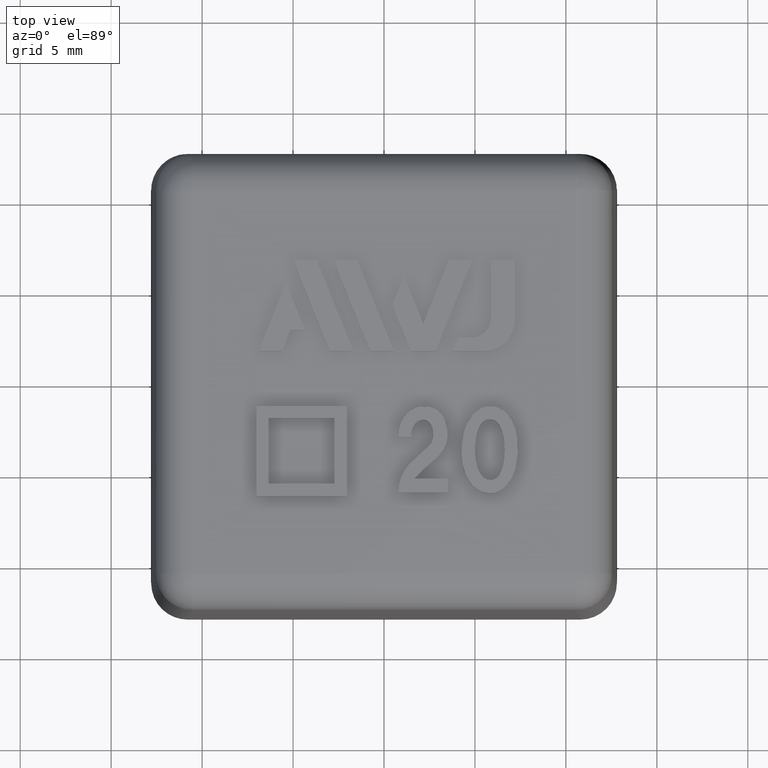
[diagram: clean part render]
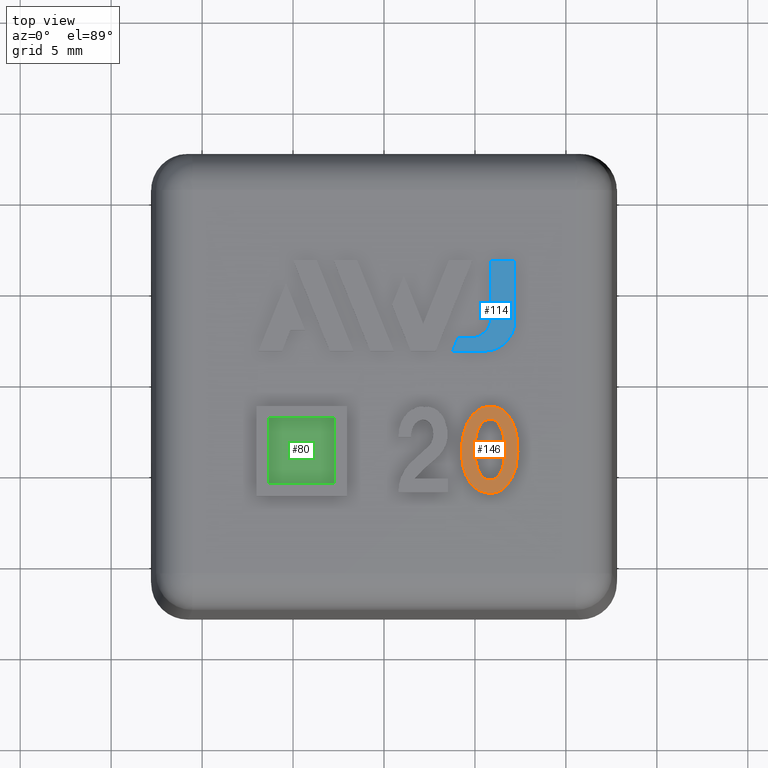
[diagram: same view with three faces highlighted in distinct colors, each labeled with its STEP entity id]
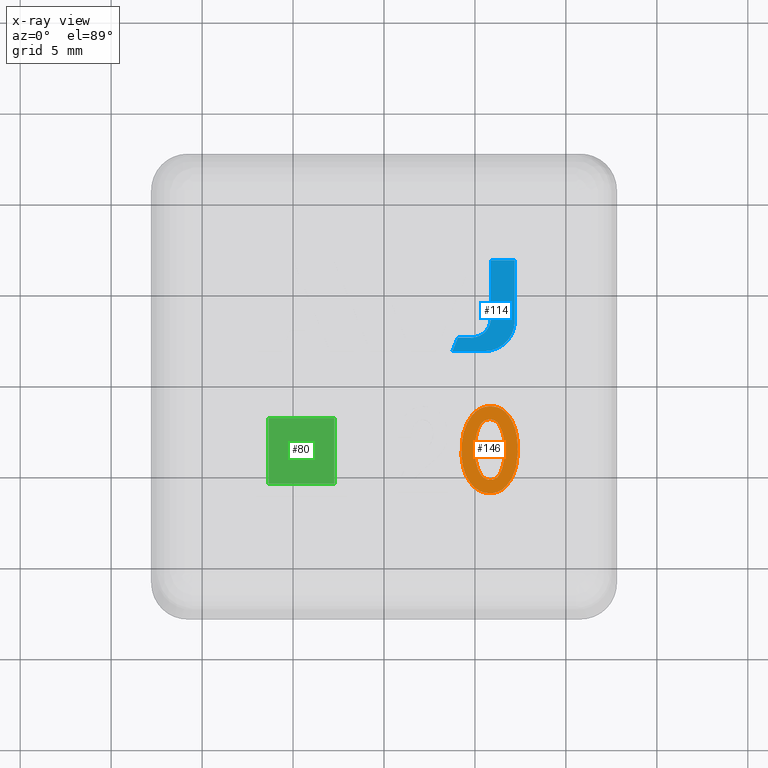
[diagram: x-ray of the same camera — body ghosted, the three highlighted faces saturated]
A machine part, top view with three faces highlighted in distinct colors.
The next image is the same camera in x-ray (body ghosted, the three faces saturated) — at least one of them is partly hidden behind the body in this view.
Their STEP definitions:

[orange] entity #146 — the highlighted planar face has unit normal (0, 0, 1).
#146 = ADVANCED_FACE( '', ( #306, #307 ), #308, .T. );
#306 = FACE_OUTER_BOUND( '', #476, .T. );
#307 = FACE_BOUND( '', #477, .T. );
#308 = PLANE( '', #478 );
#476 = EDGE_LOOP( '', ( #1075 ) );
#477 = EDGE_LOOP( '', ( #1076 ) );
#478 = AXIS2_PLACEMENT_3D( '', #1077, #1078, #1079 );
#1075 = ORIENTED_EDGE( '', *, *, #1302, .F. );
#1076 = ORIENTED_EDGE( '', *, *, #1301, .F. );
#1077 = CARTESIAN_POINT( '', ( 6.90009744318178, -1.96382727272729, 17.5000000000000 ) );
#1078 = DIRECTION( '', ( 0.000000000000000, 0.000000000000000, 1.00000000000000 ) );
#1079 = DIRECTION( '', ( 0.000000000000000, -1.00000000000000, 0.000000000000000 ) );
#1301 = EDGE_CURVE( '', #1591, #1591, #1592, .T. );
#1302 = EDGE_CURVE( '', #1593, #1593, #1594, .T. );
#1591 = VERTEX_POINT( '', #2131 );
#1592 = B_SPLINE_CURVE_WITH_KNOTS( '', 2, ( #2132, #2133, #2134, #2135, #2136, #2137, #2138, #2139, #2140, #2141, #2142, #2143, #2144, #2145, #2146, #2147, #2148 ), .UNSPECIFIED., .T., .F., ( 3, 2, 2, 2, 2, 2, 2, 2, 3 ), ( 0.000000000000000, 1.00000000000000, 2.00000000000000, 3.00000000000000, 4.00000000000000, 5.00000000000000, 6.00000000000000, 7.00000000000000, 8.00000000000000 ), .UNSPECIFIED. );
#1593 = VERTEX_POINT( '', #2149 );
#1594 = B_SPLINE_CURVE_WITH_KNOTS( '', 2, ( #2150, #2151, #2152, #2153, #2154, #2155, #2156, #2157, #2158, #2159, #2160, #2161, #2162, #2163, #2164, #2165, #2166 ), .UNSPECIFIED., .T., .F., ( 3, 2, 2, 2, 2, 2, 2, 2, 3 ), ( 0.000000000000000, 1.00000000000000, 2.00000000000000, 3.00000000000000, 4.00000000000000, 5.00000000000000, 6.00000000000000, 7.00000000000000, 8.00000000000000 ), .UNSPECIFIED. );
#2131 = CARTESIAN_POINT( '', ( 5.15746107954541, -4.81537272727274, 17.5000000000000 ) );
#2132 = CARTESIAN_POINT( '', ( 5.15746107954541, -4.81537272727274, 17.5000000000000 ) );
#2133 = CARTESIAN_POINT( '', ( 5.36200653409087, -5.36082727272729, 17.5000000000000 ) );
#2134 = CARTESIAN_POINT( '', ( 5.74869458830469, -5.42711665344966, 17.5000000000000 ) );
#2135 = CARTESIAN_POINT( '', ( 6.15746107954541, -5.49719090909093, 17.5000000000000 ) );
#2136 = CARTESIAN_POINT( '', ( 6.39956071195886, -5.03847581609701, 17.5000000000000 ) );
#2137 = CARTESIAN_POINT( '', ( 6.58927926136359, -4.67900909090911, 17.5000000000000 ) );
#2138 = CARTESIAN_POINT( '', ( 6.63102397637564, -4.04240218697547, 17.5000000000000 ) );
#2139 = CARTESIAN_POINT( '', ( 6.68018835227269, -3.29264545454547, 17.5000000000000 ) );
#2140 = CARTESIAN_POINT( '', ( 6.49511061179874, -2.74829915903388, 17.5000000000000 ) );
#2141 = CARTESIAN_POINT( '', ( 6.29382471590905, -2.15628181818184, 17.5000000000000 ) );
#2142 = CARTESIAN_POINT( '', ( 5.93109744318178, -2.10446363636365, 17.5000000000000 ) );
#2143 = CARTESIAN_POINT( '', ( 5.49837017045450, -2.04264545454547, 17.5000000000000 ) );
#2144 = CARTESIAN_POINT( '', ( 5.27599254807688, -2.43180629370631, 17.5000000000000 ) );
#2145 = CARTESIAN_POINT( '', ( 5.04382471590905, -2.83810000000002, 17.5000000000000 ) );
#2146 = CARTESIAN_POINT( '', ( 5.00196318973134, -3.49741903729898, 17.5000000000000 ) );
#2147 = CARTESIAN_POINT( '', ( 4.95291562499996, -4.26991818181820, 17.5000000000000 ) );
#2148 = CARTESIAN_POINT( '', ( 5.15746107954541, -4.81537272727274, 17.5000000000000 ) );
#2149 = CARTESIAN_POINT( '', ( 4.74668299300313, -5.58939019452165, 17.5000000000000 ) );
#2150 = CARTESIAN_POINT( '', ( 4.74668299300313, -5.58939019452165, 17.5000000000000 ) );
#2151 = CARTESIAN_POINT( '', ( 4.29382471590905, -4.99719090909093, 17.5000000000000 ) );
#2152 = CARTESIAN_POINT( '', ( 4.26223194516419, -3.99675316883694, 17.5000000000000 ) );
#2153 = CARTESIAN_POINT( '', ( 4.22564289772723, -2.83810000000002, 17.5000000000000 ) );
#2154 = CARTESIAN_POINT( '', ( 4.69678692224204, -2.08426956077632, 17.5000000000000 ) );
#2155 = CARTESIAN_POINT( '', ( 5.13473380681814, -1.38355454545456, 17.5000000000000 ) );
#2156 = CARTESIAN_POINT( '', ( 5.83927926136360, -1.38355454545456, 17.5000000000000 ) );
#2157 = CARTESIAN_POINT( '', ( 6.49837017045450, -1.38355454545456, 17.5000000000000 ) );
#2158 = CARTESIAN_POINT( '', ( 6.90009744318178, -1.96382727272729, 17.5000000000000 ) );
#2159 = CARTESIAN_POINT( '', ( 7.31655198863632, -2.56537272727274, 17.5000000000000 ) );
#2160 = CARTESIAN_POINT( '', ( 7.35862295825955, -3.56455825582449, 17.5000000000000 ) );
#2161 = CARTESIAN_POINT( '', ( 7.40746107954541, -4.72446363636365, 17.5000000000000 ) );
#2162 = CARTESIAN_POINT( '', ( 6.95604528222798, -5.45367377049182, 17.5000000000000 ) );
#2163 = CARTESIAN_POINT( '', ( 6.52109744318178, -6.15628181818184, 17.5000000000000 ) );
#2164 = CARTESIAN_POINT( '', ( 5.83927926136360, -6.15628181818184, 17.5000000000000 ) );
#2165 = CARTESIAN_POINT( '', ( 5.18018835227269, -6.15628181818184, 17.5000000000000 ) );
#2166 = CARTESIAN_POINT( '', ( 4.74668299300313, -5.58939019452165, 17.5000000000000 ) );

[blue] entity #114 — the highlighted planar face has unit normal (0, 0, 1).
#114 = ADVANCED_FACE( '', ( #240 ), #241, .T. );
#240 = FACE_OUTER_BOUND( '', #409, .T. );
#241 = PLANE( '', #410 );
#409 = EDGE_LOOP( '', ( #833, #834, #835, #836, #837, #838, #839, #840 ) );
#410 = AXIS2_PLACEMENT_3D( '', #841, #842, #843 );
#833 = ORIENTED_EDGE( '', *, *, #1244, .T. );
#834 = ORIENTED_EDGE( '', *, *, #1245, .T. );
#835 = ORIENTED_EDGE( '', *, *, #1246, .T. );
#836 = ORIENTED_EDGE( '', *, *, #1247, .T. );
#837 = ORIENTED_EDGE( '', *, *, #1248, .T. );
#838 = ORIENTED_EDGE( '', *, *, #1249, .T. );
#839 = ORIENTED_EDGE( '', *, *, #1250, .T. );
#840 = ORIENTED_EDGE( '', *, *, #1251, .T. );
#841 = CARTESIAN_POINT( '', ( 176.706592040989, 67.4189999431422, 17.1667500000000 ) );
#842 = DIRECTION( '', ( 0.000000000000000, 6.12303176911189E-017, 1.00000000000000 ) );
#843 = DIRECTION( '', ( -1.00000000000000, 0.000000000000000, 0.000000000000000 ) );
#1244 = EDGE_CURVE( '', #1505, #1506, #1507, .T. );
#1245 = EDGE_CURVE( '', #1506, #1508, #1509, .T. );
#1246 = EDGE_CURVE( '', #1508, #1510, #1511, .F. );
#1247 = EDGE_CURVE( '', #1510, #1512, #1513, .T. );
#1248 = EDGE_CURVE( '', #1512, #1514, #1515, .T. );
#1249 = EDGE_CURVE( '', #1514, #1516, #1517, .T. );
#1250 = EDGE_CURVE( '', #1516, #1518, #1519, .T. );
#1251 = EDGE_CURVE( '', #1518, #1505, #1520, .T. );
#1505 = VERTEX_POINT( '', #1991 );
#1506 = VERTEX_POINT( '', #1992 );
#1507 = LINE( '', #1993, #1994 );
#1508 = VERTEX_POINT( '', #1995 );
#1509 = LINE( '', #1996, #1997 );
#1510 = VERTEX_POINT( '', #1998 );
#1511 = CIRCLE( '', #1999, 1.11222250000000 );
#1512 = VERTEX_POINT( '', #2000 );
#1513 = LINE( '', #2001, #2002 );
#1514 = VERTEX_POINT( '', #2003 );
#1515 = LINE( '', #2004, #2005 );
#1516 = VERTEX_POINT( '', #2006 );
#1517 = LINE( '', #2007, #2008 );
#1518 = VERTEX_POINT( '', #2009 );
#1519 = CIRCLE( '', #2010, 1.66833375000000 );
#1520 = LINE( '', #2011, #2012 );
#1991 = CARTESIAN_POINT( '', ( 7.19011739418746, 6.66073918852999, 17.1667500000000 ) );
#1992 = CARTESIAN_POINT( '', ( 5.88306354219496, 6.66073918852999, 17.1667500000000 ) );
#1993 = CARTESIAN_POINT( '', ( 7.19011739418746, 6.66073918852999, 17.1667500000000 ) );
#1994 = VECTOR( '', #2274, 1000.00000000000 );
#1995 = CARTESIAN_POINT( '', ( 5.88306354219496, 3.49891139719624, 17.1667500000000 ) );
#1996 = CARTESIAN_POINT( '', ( 5.88306354219496, 6.66073918852999, 17.1667500000000 ) );
#1997 = VECTOR( '', #2275, 1000.00000000000 );
#1998 = CARTESIAN_POINT( '', ( 4.77084104219496, 2.38668889719624, 17.1667500000000 ) );
#1999 = AXIS2_PLACEMENT_3D( '', #2276, #2277, #2278 );
#2000 = CARTESIAN_POINT( '', ( 4.06043839421621, 2.38668889719624, 17.1667500000000 ) );
#2001 = CARTESIAN_POINT( '', ( 4.77084104219496, 2.38668889719624, 17.1667500000000 ) );
#2002 = VECTOR( '', #2279, 1000.00000000000 );
#2003 = CARTESIAN_POINT( '', ( 3.76659477082872, 1.65939937499998, 17.1667500000000 ) );
#2004 = CARTESIAN_POINT( '', ( 4.06043839421621, 2.38668889719624, 17.1667500000000 ) );
#2005 = VECTOR( '', #2280, 1000.00000000000 );
#2006 = CARTESIAN_POINT( '', ( 5.52178364418746, 1.65939937499998, 17.1667500000000 ) );
#2007 = CARTESIAN_POINT( '', ( 3.76659477082872, 1.65939937499998, 17.1667500000000 ) );
#2008 = VECTOR( '', #2281, 1000.00000000000 );
#2009 = CARTESIAN_POINT( '', ( 7.19011739418746, 3.32773312499999, 17.1667500000000 ) );
#2010 = AXIS2_PLACEMENT_3D( '', #2282, #2283, #2284 );
#2011 = CARTESIAN_POINT( '', ( 7.19011739418746, 3.32773312499999, 17.1667500000000 ) );
#2012 = VECTOR( '', #2285, 1000.00000000000 );
#2274 = DIRECTION( '', ( -1.00000000000000, -1.66533453693774E-016, 1.01968962758690E-032 ) );
#2275 = DIRECTION( '', ( -2.22044604925031E-016, -1.00000000000000, 6.12303176911189E-017 ) );
#2276 = CARTESIAN_POINT( '', ( 4.77084104219496, 3.49891139719624, 17.1667500000000 ) );
#2277 = DIRECTION( '', ( 0.000000000000000, 6.12303176911189E-017, 1.00000000000000 ) );
#2278 = DIRECTION( '', ( 0.000000000000000, -1.00000000000000, 6.12303176911189E-017 ) );
#2279 = DIRECTION( '', ( -1.00000000000000, -2.77555756156289E-016, 1.69948271264483E-032 ) );
#2280 = DIRECTION( '', ( -0.374606136016172, -0.927184039368147, 5.67717732886465E-017 ) );
#2281 = DIRECTION( '', ( 1.00000000000000, 2.22044604925031E-016, -1.35958617011586E-032 ) );
#2282 = CARTESIAN_POINT( '', ( 5.52178364418746, 3.32773312499998, 17.1667500000000 ) );
#2283 = DIRECTION( '', ( 0.000000000000000, 6.12303176911189E-017, 1.00000000000000 ) );
#2284 = DIRECTION( '', ( 0.000000000000000, -1.00000000000000, 6.12303176911189E-017 ) );
#2285 = DIRECTION( '', ( 2.22044604925031E-016, 1.00000000000000, -6.12303176911189E-017 ) );

[green] entity #80 — the highlighted planar face has unit normal (0, 0, 1).
#80 = ADVANCED_FACE( '', ( #171 ), #172, .T. );
#171 = FACE_OUTER_BOUND( '', #340, .T. );
#172 = PLANE( '', #341 );
#340 = EDGE_LOOP( '', ( #587, #588, #589, #590 ) );
#341 = AXIS2_PLACEMENT_3D( '', #591, #592, #593 );
#587 = ORIENTED_EDGE( '', *, *, #1184, .T. );
#588 = ORIENTED_EDGE( '', *, *, #1185, .T. );
#589 = ORIENTED_EDGE( '', *, *, #1186, .T. );
#590 = ORIENTED_EDGE( '', *, *, #1187, .T. );
#591 = CARTESIAN_POINT( '', ( -12.8000000000000, -12.8000000000000, 17.0000000000000 ) );
#592 = DIRECTION( '', ( 0.000000000000000, 0.000000000000000, 1.00000000000000 ) );
#593 = DIRECTION( '', ( 0.000000000000000, -1.00000000000000, 0.000000000000000 ) );
#1184 = EDGE_CURVE( '', #1413, #1414, #1415, .T. );
#1185 = EDGE_CURVE( '', #1414, #1416, #1417, .T. );
#1186 = EDGE_CURVE( '', #1416, #1418, #1419, .T. );
#1187 = EDGE_CURVE( '', #1418, #1413, #1420, .T. );
#1413 = VERTEX_POINT( '', #1827 );
#1414 = VERTEX_POINT( '', #1828 );
#1415 = B_SPLINE_CURVE_WITH_KNOTS( '', 2, ( #1829, #1830, #1831 ), .UNSPECIFIED., .F., .F., ( 3, 3 ), ( 3.00000000000000, 4.00000000000000 ), .UNSPECIFIED. );
#1416 = VERTEX_POINT( '', #1832 );
#1417 = B_SPLINE_CURVE_WITH_KNOTS( '', 2, ( #1833, #1834, #1835 ), .UNSPECIFIED., .F., .F., ( 3, 3 ), ( 0.000000000000000, 1.00000000000000 ), .UNSPECIFIED. );
#1418 = VERTEX_POINT( '', #1836 );
#1419 = B_SPLINE_CURVE_WITH_KNOTS( '', 2, ( #1837, #1838, #1839 ), .UNSPECIFIED., .F., .F., ( 3, 3 ), ( 1.00000000000000, 2.00000000000000 ), .UNSPECIFIED. );
#1420 = B_SPLINE_CURVE_WITH_KNOTS( '', 2, ( #1840, #1841, #1842 ), .UNSPECIFIED., .F., .F., ( 3, 3 ), ( 2.00000000000000, 3.00000000000000 ), .UNSPECIFIED. );
#1827 = CARTESIAN_POINT( '', ( -6.34253892045459, -2.01991818181820, 17.0000000000000 ) );
#1828 = CARTESIAN_POINT( '', ( -6.34253892045459, -5.63355454545456, 17.0000000000000 ) );
#1829 = CARTESIAN_POINT( '', ( -6.34253892045459, -2.01991818181820, 17.0000000000000 ) );
#1830 = CARTESIAN_POINT( '', ( -6.34253892045459, -3.82673636363638, 17.0000000000000 ) );
#1831 = CARTESIAN_POINT( '', ( -6.34253892045459, -5.63355454545456, 17.0000000000000 ) );
#1832 = CARTESIAN_POINT( '', ( -2.72890255681822, -5.63355454545456, 17.0000000000000 ) );
#1833 = CARTESIAN_POINT( '', ( -6.34253892045459, -5.63355454545456, 17.0000000000000 ) );
#1834 = CARTESIAN_POINT( '', ( -4.53572073863640, -5.63355454545456, 17.0000000000000 ) );
#1835 = CARTESIAN_POINT( '', ( -2.72890255681822, -5.63355454545456, 17.0000000000000 ) );
#1836 = CARTESIAN_POINT( '', ( -2.72890255681822, -2.01991818181820, 17.0000000000000 ) );
#1837 = CARTESIAN_POINT( '', ( -2.72890255681822, -5.63355454545456, 17.0000000000000 ) );
#1838 = CARTESIAN_POINT( '', ( -2.72890255681822, -3.82673636363638, 17.0000000000000 ) );
#1839 = CARTESIAN_POINT( '', ( -2.72890255681822, -2.01991818181820, 17.0000000000000 ) );
#1840 = CARTESIAN_POINT( '', ( -2.72890255681822, -2.01991818181820, 17.0000000000000 ) );
#1841 = CARTESIAN_POINT( '', ( -4.53572073863640, -2.01991818181820, 17.0000000000000 ) );
#1842 = CARTESIAN_POINT( '', ( -6.34253892045459, -2.01991818181820, 17.0000000000000 ) );